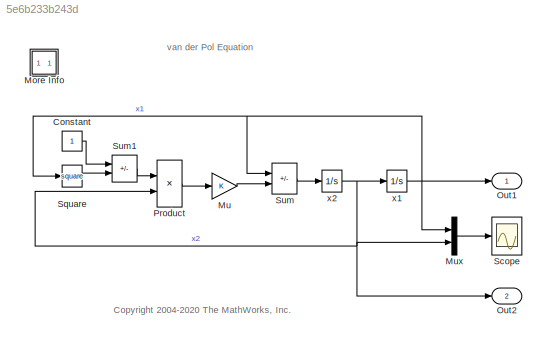
MODEL slx_5e6b233b243d
KIND model
CONFIG AbsTol = 1e-6
CONFIG EnableMultiTasking = off
CONFIG FixedStep = auto
CONFIG MaxStep = auto
CONFIG MinStep = auto
CONFIG RelTol = 1e-3
CONFIG SampleTimeConstraint = Unconstrained
CONFIG SolverName = VariableStepAuto
CONFIG StartTime = 0.0
CONFIG StopTime = 20
BLOCK [Constant] Constant
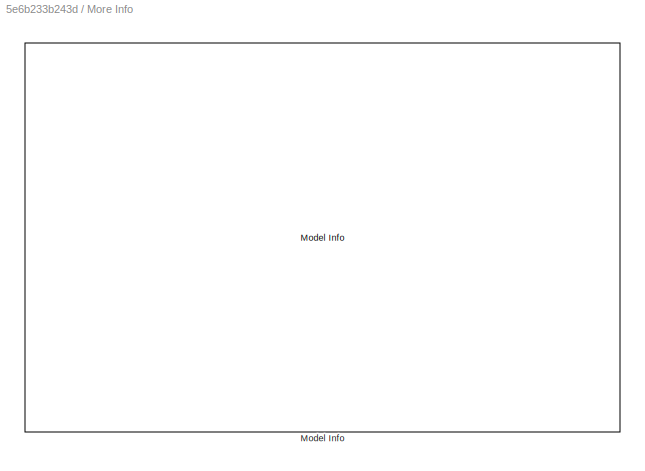
BLOCK [SubSystem] More Info
BLOCK [Reference] More Info/Model Info  REF=simulink/Model-Wide
Utilities/Model Info
  SourceBlock = simulink/Model-Wide\nUtilities/Model Info
  SourceType = CMBlock
BLOCK [Gain] Mu
  OutDataTypeStr = Inherit: Same as input
  ParamDataTypeStr = Inherit: Same as input
  SaturateOnIntegerOverflow = on
BLOCK [Mux] Mux
  DisplayOption = bar
  Inputs = 2
BLOCK [Outport] Out1
  InitialOutput = 0
  VectorParamsAs1DForOutWhenUnconnected = off
BLOCK [Outport] Out2
  InitialOutput = 0
  Port = 2
  VectorParamsAs1DForOutWhenUnconnected = off
BLOCK [Product] Product
  InputSameDT = on
  OutDataTypeStr = Inherit: Same as first input
  RndMeth = Zero
  SaturateOnIntegerOverflow = on
BLOCK [Scope] Scope
  Floating = off
  NumInputPorts = 1
  ScopeSpecificationString = Simulink.scopes.TimeScopeBlockCfg('CurrentConfiguration', extmgr.ConfigurationSet(extmgr.Configuration('Core','General UI',true),extmgr.Configuration('Core','Source UI',true),extmgr.Configuration('Sources','WiredSimulink',true,'DataLoggingLimitDataPoints',true,'DataLoggingSaveFormat','Array','DataLoggingDecimation','1','DataLoggingDecimateData',true),extmgr.Configuration('Visuals','Time Domain',tr...<+1665ch>
BLOCK [Math] Square
  Operator = square
BLOCK [Sum] Sum
  IconShape = rectangular
  InputSameDT = on
  Inputs = -+
  OutDataTypeStr = Inherit: Same as first input
  SaturateOnIntegerOverflow = on
BLOCK [Sum] Sum1
  IconShape = rectangular
  InputSameDT = on
  Inputs = +-
  OutDataTypeStr = Inherit: Same as first input
  SaturateOnIntegerOverflow = on
BLOCK [Integrator] x1
  InitialCondition = 2
BLOCK [Integrator] x2
ANNOTATION (root): <copyright redacted>
ANNOTATION (root): van der Pol Equation
LINE Constant:1 -> Sum1:1
LINE Mu:1 -> Sum:2
LINE Mux:1 -> Scope:1
LINE Product:1 -> Mu:1
LINE Square:1 -> Sum1:2
LINE Sum1:1 -> Product:1
LINE Sum:1 -> x2:1
NET x1:1 -> Mux:1, Out1:1, Square:1, Sum:1
NET x2:1 -> Mux:2, Out2:1, Product:2, x1:1
note: NET lines group one-source signal fan-out (src -> all destinations, sorted); 1:1 wires keep LINE
